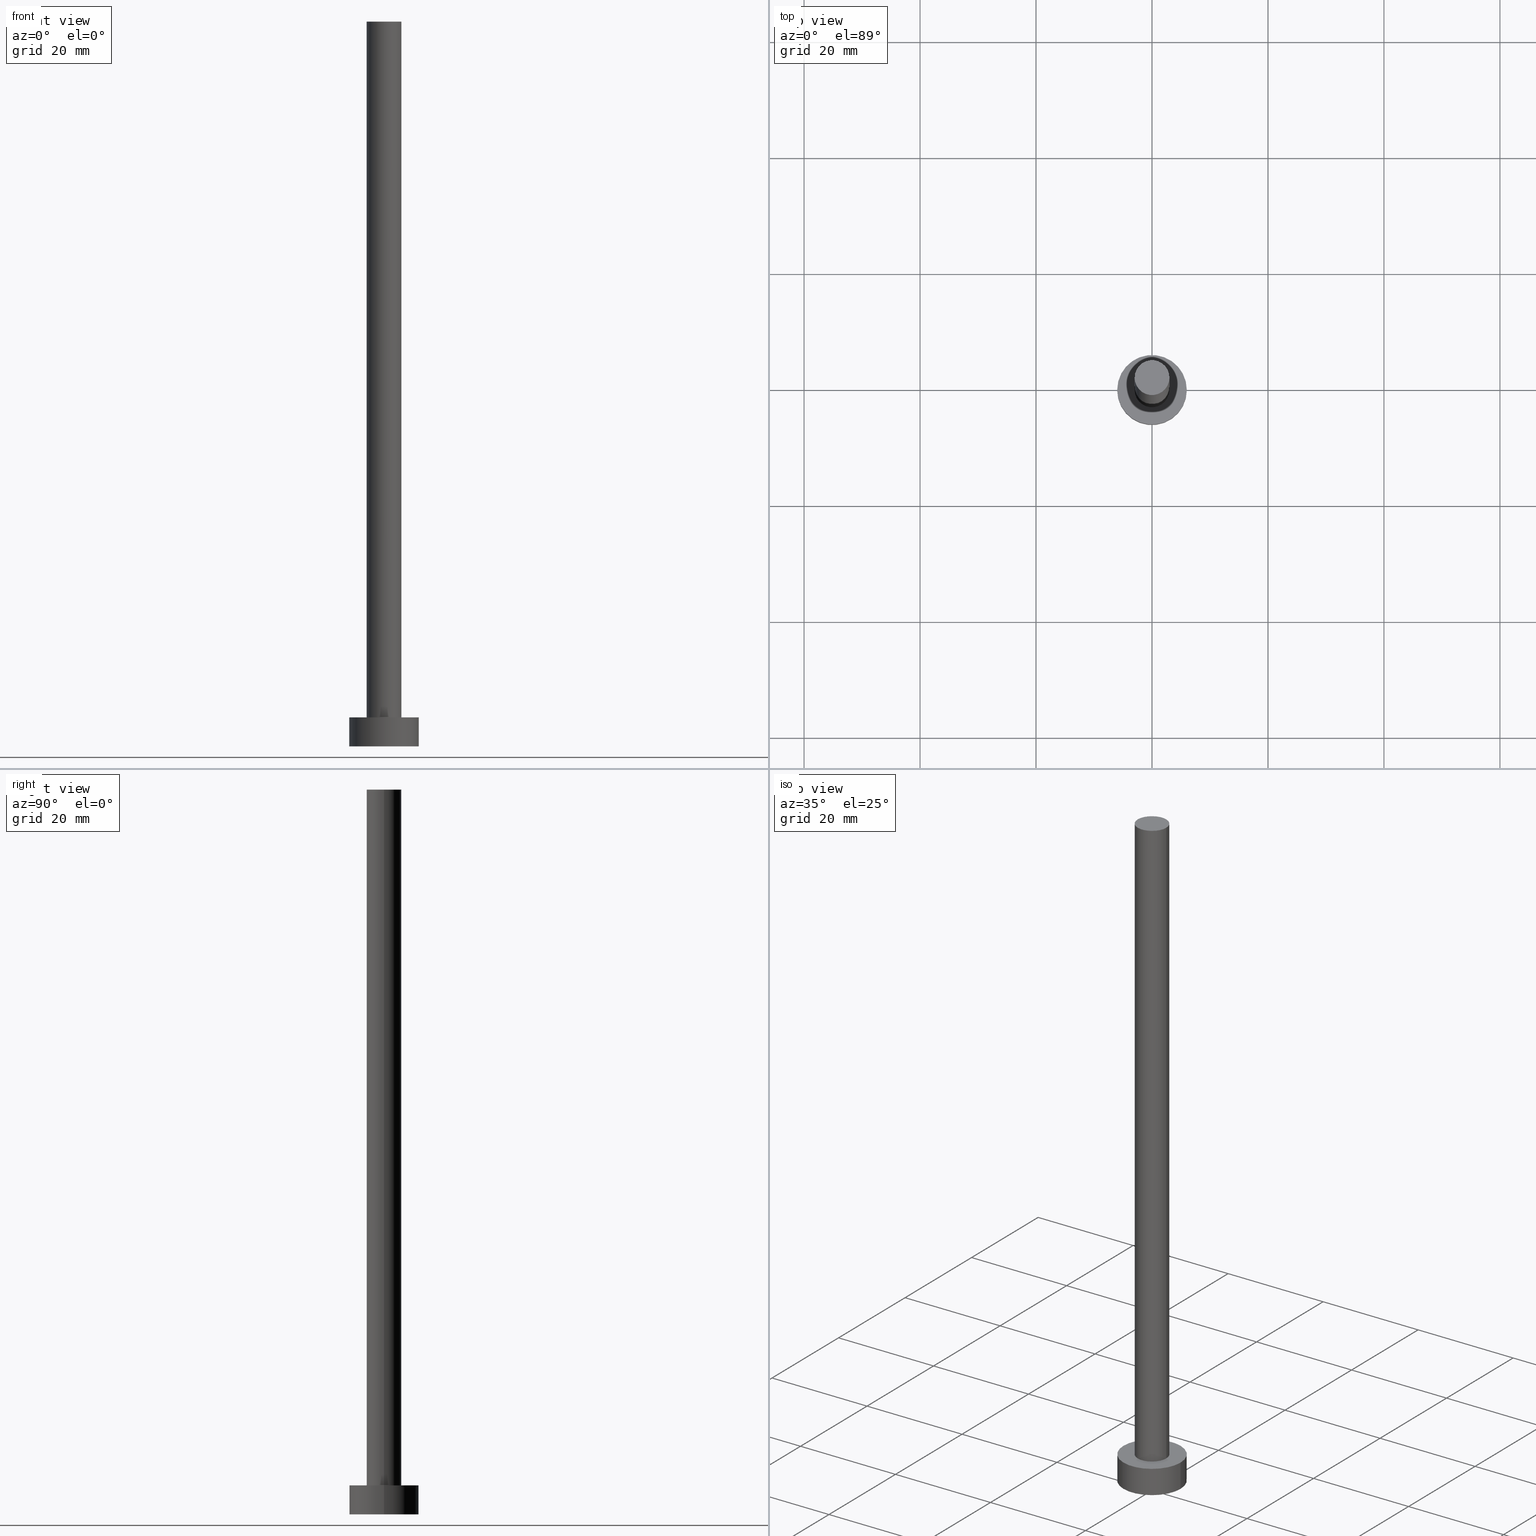
[diagram: canonical four-view strip — front | top / right | iso, engineering-drawing reading convention]
A machine part, canonical four-view strip (front | top / right | iso — engineering-drawing reading convention). The complete STEP part file that produces these views, byte-faithful:
ISO-10303-21;
HEADER;
FILE_DESCRIPTION (( 'STEP AP203' ),
    '1' );
FILE_NAME ('43e4.STEP',
    '2023-02-13T15:45:38',
    ( '' ),
    ( '' ),
    'SwSTEP 2.0',
    'SolidWorks 2019',
    '' );
FILE_SCHEMA (( 'CONFIG_CONTROL_DESIGN' ));
ENDSEC;

DATA;
#1 = CIRCLE ( 'NONE', #123, 6.000000000000000888 ) ;
#2 = ORGANIZATION ( 'NEUR�EN�', 'NEUR�EN�', '' ) ;
#3 = ORIENTED_EDGE ( 'NONE', *, *, #43, .T. ) ;
#4 = LINE ( 'NONE', #236, #196 ) ;
#5 = ORIENTED_EDGE ( 'NONE', *, *, #43, .F. ) ;
#6 = ADVANCED_FACE ( 'NONE', ( #76, #178 ), #73, .T. ) ;
#7 = ORIENTED_EDGE ( 'NONE', *, *, #235, .F. ) ;
#8 = AXIS2_PLACEMENT_3D ( 'NONE', #63, #28, #179 ) ;
#9 = CYLINDRICAL_SURFACE ( 'NONE', #50, 6.000000000000000888 ) ;
#10 = CYLINDRICAL_SURFACE ( 'NONE', #159, 3.000000000000000444 ) ;
#11 = CARTESIAN_POINT ( 'NONE',  ( 0.000000000000000000, 0.000000000000000000, 125.0000000000000000 ) ) ;
#12 = APPROVAL_PERSON_ORGANIZATION ( #69, #242, #209 ) ;
#13 = CC_DESIGN_PERSON_AND_ORGANIZATION_ASSIGNMENT ( #166, #84, ( #40 ) ) ;
#14 = DIRECTION ( 'NONE',  ( -0.000000000000000000, -0.000000000000000000, -1.000000000000000000 ) ) ;
#15 = CIRCLE ( 'NONE', #220, 3.000000000000000444 ) ;
#16 = EDGE_CURVE ( 'NONE', #156, #219, #175, .T. ) ;
#17 = APPROVAL_PERSON_ORGANIZATION ( #21, #132, #36 ) ;
#18 = PERSON_AND_ORGANIZATION ( #216, #2 ) ;
#19 = CALENDAR_DATE ( 2023, 13, 2 ) ;
#20 = PRODUCT_DEFINITION_FORMATION_WITH_SPECIFIED_SOURCE ( 'LIBOVOLN�', '', #40, .NOT_KNOWN. ) ;
#21 = PERSON_AND_ORGANIZATION ( #216, #2 ) ;
#22 = VERTEX_POINT ( 'NONE', #24 ) ;
#23 = DIRECTION ( 'NONE',  ( 0.000000000000000000, 0.000000000000000000, 1.000000000000000000 ) ) ;
#24 = CARTESIAN_POINT ( 'NONE',  ( 6.000000000000000888, 7.347880794884120722E-16, 5.000000000000000000 ) ) ;
#25 = EDGE_CURVE ( 'NONE', #185, #211, #142, .T. ) ;
#26 = DIRECTION ( 'NONE',  ( 1.000000000000000000, 0.000000000000000000, -0.000000000000000000 ) ) ;
#27 = DIRECTION ( 'NONE',  ( 1.000000000000000000, 0.000000000000000000, 0.000000000000000000 ) ) ;
#28 = DIRECTION ( 'NONE',  ( 0.000000000000000000, 0.000000000000000000, 1.000000000000000000 ) ) ;
#29 = EDGE_CURVE ( 'NONE', #22, #151, #204, .T. ) ;
#30 = DIRECTION ( 'NONE',  ( 0.000000000000000000, 0.000000000000000000, 1.000000000000000000 ) ) ;
#31 = DIRECTION ( 'NONE',  ( 1.000000000000000000, 0.000000000000000000, 0.000000000000000000 ) ) ;
#32 = COORDINATED_UNIVERSAL_TIME_OFFSET ( 1, 0, .AHEAD. ) ;
#33 = ORIENTED_EDGE ( 'NONE', *, *, #89, .T. ) ;
#34 = PERSON_AND_ORGANIZATION_ROLE ( 'classification_officer' ) ;
#35 = EDGE_LOOP ( 'NONE', ( #104, #194 ) ) ;
#36 = APPROVAL_ROLE ( '' ) ;
#37 = APPROVAL_DATE_TIME ( #149, #132 ) ;
#38 = DIRECTION ( 'NONE',  ( -0.000000000000000000, -0.000000000000000000, -1.000000000000000000 ) ) ;
#39 = DIRECTION ( 'NONE',  ( 0.000000000000000000, 0.000000000000000000, 1.000000000000000000 ) ) ;
#40 = PRODUCT ( '43e4', '43e4', '', ( #122 ) ) ;
#41 = ORIENTED_EDGE ( 'NONE', *, *, #16, .T. ) ;
#42 = CARTESIAN_POINT ( 'NONE',  ( 0.000000000000000000, 0.000000000000000000, 5.000000000000000000 ) ) ;
#43 = EDGE_CURVE ( 'NONE', #151, #185, #4, .T. ) ;
#44 = CARTESIAN_POINT ( 'NONE',  ( 0.000000000000000000, 0.000000000000000000, 5.000000000000000000 ) ) ;
#45 = CARTESIAN_POINT ( 'NONE',  ( 0.000000000000000000, 0.000000000000000000, 125.0000000000000000 ) ) ;
#46 = CARTESIAN_POINT ( 'NONE',  ( 3.000000000000000444, 3.673940397442060361E-16, 5.000000000000000000 ) ) ;
#47 = DIRECTION ( 'NONE',  ( 1.000000000000000000, 0.000000000000000000, 0.000000000000000000 ) ) ;
#48 = APPLICATION_PROTOCOL_DEFINITION ( 'international standard', 'config_control_design', 1994, #206 ) ;
#49 = CC_DESIGN_APPROVAL ( #242, ( #20 ) ) ;
#50 = AXIS2_PLACEMENT_3D ( 'NONE', #77, #38, #141 ) ;
#51 = EDGE_LOOP ( 'NONE', ( #191, #88, #168, #5 ) ) ;
#52 = DIRECTION ( 'NONE',  ( 0.000000000000000000, 0.000000000000000000, 1.000000000000000000 ) ) ;
#53 = CC_DESIGN_PERSON_AND_ORGANIZATION_ASSIGNMENT ( #18, #127, ( #20 ) ) ;
#54 = AXIS2_PLACEMENT_3D ( 'NONE', #44, #39, #26 ) ;
#55 = VERTEX_POINT ( 'NONE', #74 ) ;
#56 = DIRECTION ( 'NONE',  ( -0.000000000000000000, -0.000000000000000000, -1.000000000000000000 ) ) ;
#57 = EDGE_CURVE ( 'NONE', #156, #212, #15, .T. ) ;
#58 = FACE_OUTER_BOUND ( 'NONE', #241, .T. ) ;
#59 = DIRECTION ( 'NONE',  ( 0.000000000000000000, 0.000000000000000000, 1.000000000000000000 ) ) ;
#60 = FACE_OUTER_BOUND ( 'NONE', #130, .T. ) ;
#61 = CARTESIAN_POINT ( 'NONE',  ( 0.000000000000000000, 0.000000000000000000, 0.000000000000000000 ) ) ;
#62 = DIRECTION ( 'NONE',  ( 1.000000000000000000, 0.000000000000000000, -0.000000000000000000 ) ) ;
#63 = CARTESIAN_POINT ( 'NONE',  ( 0.000000000000000000, 0.000000000000000000, 5.000000000000000000 ) ) ;
#64 = SHAPE_DEFINITION_REPRESENTATION ( #248, #169 ) ;
#65 = APPROVAL_ROLE ( '' ) ;
#66 = ADVANCED_FACE ( 'NONE', ( #58 ), #240, .T. ) ;
#67 = LOCAL_TIME ( 16, 45, 38.00000000000000000, #229 ) ;
#68 = UNCERTAINTY_MEASURE_WITH_UNIT (LENGTH_MEASURE( 1.000000000000000082E-05 ), #228, 'distance_accuracy_value', 'NONE');
#69 = PERSON_AND_ORGANIZATION ( #216, #2 ) ;
#70 = COORDINATED_UNIVERSAL_TIME_OFFSET ( 1, 0, .AHEAD. ) ;
#71 = AXIS2_PLACEMENT_3D ( 'NONE', #42, #59, #129 ) ;
#72 = ORIENTED_EDGE ( 'NONE', *, *, #89, .F. ) ;
#73 = PLANE ( 'NONE',  #54 ) ;
#74 = CARTESIAN_POINT ( 'NONE',  ( -3.000000000000000444, 0.000000000000000000, 5.000000000000000000 ) ) ;
#75 = CIRCLE ( 'NONE', #107, 3.000000000000000444 ) ;
#76 = FACE_BOUND ( 'NONE', #133, .T. ) ;
#77 = CARTESIAN_POINT ( 'NONE',  ( 0.000000000000000000, 0.000000000000000000, 5.000000000000000000 ) ) ;
#78 = DIRECTION ( 'NONE',  ( 1.000000000000000000, 0.000000000000000000, -0.000000000000000000 ) ) ;
#79 = MANIFOLD_SOLID_BREP ( 'P�idat vysunut�m3', #126 ) ;
#80 = DIRECTION ( 'NONE',  ( 0.000000000000000000, 0.000000000000000000, 1.000000000000000000 ) ) ;
#81 = CARTESIAN_POINT ( 'NONE',  ( -6.000000000000000888, 0.000000000000000000, 0.000000000000000000 ) ) ;
#82 = CALENDAR_DATE ( 2023, 13, 2 ) ;
#83 = ORIENTED_EDGE ( 'NONE', *, *, #16, .F. ) ;
#84 = PERSON_AND_ORGANIZATION_ROLE ( 'design_owner' ) ;
#85 = CALENDAR_DATE ( 2023, 13, 2 ) ;
#86 = PERSON_AND_ORGANIZATION_ROLE ( 'design_supplier' ) ;
#87 = FACE_OUTER_BOUND ( 'NONE', #51, .T. ) ;
#88 = ORIENTED_EDGE ( 'NONE', *, *, #172, .T. ) ;
#89 = EDGE_CURVE ( 'NONE', #151, #22, #1, .T. ) ;
#90 = ORIENTED_EDGE ( 'NONE', *, *, #57, .T. ) ;
#91 = ORIENTED_EDGE ( 'NONE', *, *, #235, .T. ) ;
#92 = PRODUCT_RELATED_PRODUCT_CATEGORY ( 'detail', '', ( #40 ) ) ;
#93 = ORIENTED_EDGE ( 'NONE', *, *, #233, .T. ) ;
#94 = CC_DESIGN_DATE_AND_TIME_ASSIGNMENT ( #232, #103, ( #231 ) ) ;
#95 = PLANE ( 'NONE',  #192 ) ;
#96 = FACE_OUTER_BOUND ( 'NONE', #177, .T. ) ;
#97 = CARTESIAN_POINT ( 'NONE',  ( 0.000000000000000000, 0.000000000000000000, 5.000000000000000000 ) ) ;
#98 = AXIS2_PLACEMENT_3D ( 'NONE', #193, #23, #215 ) ;
#99 = APPROVAL_STATUS ( 'not_yet_approved' ) ;
#100 = ADVANCED_FACE ( 'NONE', ( #87 ), #9, .T. ) ;
#101 = ORIENTED_EDGE ( 'NONE', *, *, #233, .F. ) ;
#102 = PERSON_AND_ORGANIZATION_ROLE ( 'creator' ) ;
#103 = DATE_TIME_ROLE ( 'classification_date' ) ;
#104 = ORIENTED_EDGE ( 'NONE', *, *, #25, .F. ) ;
#105 = DATE_AND_TIME ( #19, #116 ) ;
#106 = AXIS2_PLACEMENT_3D ( 'NONE', #118, #180, #31 ) ;
#107 = AXIS2_PLACEMENT_3D ( 'NONE', #139, #80, #162 ) ;
#108 = APPLICATION_PROTOCOL_DEFINITION ( 'international standard', 'config_control_design', 1994, #224 ) ;
#109 = ORIENTED_EDGE ( 'NONE', *, *, #110, .F. ) ;
#110 = EDGE_CURVE ( 'NONE', #212, #55, #245, .T. ) ;
#111 = CARTESIAN_POINT ( 'NONE',  ( 3.000000000000000444, 3.673940397442060361E-16, 125.0000000000000000 ) ) ;
#112 = APPROVAL_PERSON_ORGANIZATION ( #187, #138, #65 ) ;
#113 = EDGE_LOOP ( 'NONE', ( #208, #90 ) ) ;
#114 = EDGE_LOOP ( 'NONE', ( #33, #124 ) ) ;
#115 = CARTESIAN_POINT ( 'NONE',  ( 0.000000000000000000, 0.000000000000000000, 5.000000000000000000 ) ) ;
#116 = LOCAL_TIME ( 16, 45, 38.00000000000000000, #70 ) ;
#117 = FACE_OUTER_BOUND ( 'NONE', #35, .T. ) ;
#118 = CARTESIAN_POINT ( 'NONE',  ( 0.000000000000000000, 0.000000000000000000, 5.000000000000000000 ) ) ;
#119 = DIRECTION ( 'NONE',  ( -0.000000000000000000, -0.000000000000000000, -1.000000000000000000 ) ) ;
#120 = DIRECTION ( 'NONE',  ( -0.000000000000000000, -0.000000000000000000, -1.000000000000000000 ) ) ;
#121 =( NAMED_UNIT ( * ) SI_UNIT ( $, .STERADIAN. ) SOLID_ANGLE_UNIT ( ) );
#122 = MECHANICAL_CONTEXT ( 'NONE', #206, 'mechanical' ) ;
#123 = AXIS2_PLACEMENT_3D ( 'NONE', #115, #197, #27 ) ;
#124 = ORIENTED_EDGE ( 'NONE', *, *, #29, .T. ) ;
#125 = DATE_TIME_ROLE ( 'creation_date' ) ;
#126 = CLOSED_SHELL ( 'NONE', ( #66, #100, #181, #6, #176, #163, #150 ) ) ;
#127 = PERSON_AND_ORGANIZATION_ROLE ( 'creator' ) ;
#128 = CC_DESIGN_APPROVAL ( #132, ( #214 ) ) ;
#129 = DIRECTION ( 'NONE',  ( 1.000000000000000000, 0.000000000000000000, 0.000000000000000000 ) ) ;
#130 = EDGE_LOOP ( 'NONE', ( #83, #218, #173, #91 ) ) ;
#131 = AXIS2_PLACEMENT_3D ( 'NONE', #135, #195, #136 ) ;
#132 = APPROVAL ( #99, 'NEUR�EN�' ) ;
#133 = EDGE_LOOP ( 'NONE', ( #7, #101 ) ) ;
#134 = CC_DESIGN_SECURITY_CLASSIFICATION ( #231, ( #20 ) ) ;
#135 = CARTESIAN_POINT ( 'NONE',  ( 0.000000000000000000, 0.000000000000000000, 125.0000000000000000 ) ) ;
#136 = DIRECTION ( 'NONE',  ( -1.000000000000000000, 0.000000000000000000, 0.000000000000000000 ) ) ;
#137 = CARTESIAN_POINT ( 'NONE',  ( 0.000000000000000000, 0.000000000000000000, 0.000000000000000000 ) ) ;
#138 = APPROVAL ( #250, 'NEUR�EN�' ) ;
#139 = CARTESIAN_POINT ( 'NONE',  ( 0.000000000000000000, 0.000000000000000000, 125.0000000000000000 ) ) ;
#140 = CARTESIAN_POINT ( 'NONE',  ( 3.000000000000000444, 3.673940397442060361E-16, 125.0000000000000000 ) ) ;
#141 = DIRECTION ( 'NONE',  ( -1.000000000000000000, 0.000000000000000000, 0.000000000000000000 ) ) ;
#142 = CIRCLE ( 'NONE', #98, 6.000000000000000888 ) ;
#143 = DIRECTION ( 'NONE',  ( 0.000000000000000000, 0.000000000000000000, 1.000000000000000000 ) ) ;
#144 = DATE_AND_TIME ( #253, #183 ) ;
#145 = CC_DESIGN_PERSON_AND_ORGANIZATION_ASSIGNMENT ( #205, #34, ( #231 ) ) ;
#146 = APPROVAL_STATUS ( 'not_yet_approved' ) ;
#147 = CC_DESIGN_APPROVAL ( #138, ( #231 ) ) ;
#148 = ORIENTED_EDGE ( 'NONE', *, *, #25, .T. ) ;
#149 = DATE_AND_TIME ( #85, #252 ) ;
#150 = ADVANCED_FACE ( 'NONE', ( #200 ), #221, .T. ) ;
#151 = VERTEX_POINT ( 'NONE', #164 ) ;
#152 = DIRECTION ( 'NONE',  ( -0.000000000000000000, -0.000000000000000000, -1.000000000000000000 ) ) ;
#153 = CARTESIAN_POINT ( 'NONE',  ( 0.000000000000000000, 0.000000000000000000, 125.0000000000000000 ) ) ;
#154 = CIRCLE ( 'NONE', #8, 3.000000000000000444 ) ;
#155 = DIRECTION ( 'NONE',  ( 1.000000000000000000, 0.000000000000000000, 0.000000000000000000 ) ) ;
#156 = VERTEX_POINT ( 'NONE', #140 ) ;
#157 = VECTOR ( 'NONE', #120, 1000.000000000000000 ) ;
#158 = DIRECTION ( 'NONE',  ( -1.000000000000000000, 0.000000000000000000, 0.000000000000000000 ) ) ;
#159 = AXIS2_PLACEMENT_3D ( 'NONE', #11, #182, #158 ) ;
#160 = CARTESIAN_POINT ( 'NONE',  ( 0.000000000000000000, 0.000000000000000000, 0.000000000000000000 ) ) ;
#161 = CYLINDRICAL_SURFACE ( 'NONE', #227, 6.000000000000000888 ) ;
#162 = DIRECTION ( 'NONE',  ( 1.000000000000000000, 0.000000000000000000, 0.000000000000000000 ) ) ;
#163 = ADVANCED_FACE ( 'NONE', ( #60 ), #10, .T. ) ;
#164 = CARTESIAN_POINT ( 'NONE',  ( -6.000000000000000888, 0.000000000000000000, 5.000000000000000000 ) ) ;
#165 = CC_DESIGN_DATE_AND_TIME_ASSIGNMENT ( #144, #125, ( #214 ) ) ;
#166 = PERSON_AND_ORGANIZATION ( #216, #2 ) ;
#167 = COORDINATED_UNIVERSAL_TIME_OFFSET ( 1, 0, .AHEAD. ) ;
#168 = ORIENTED_EDGE ( 'NONE', *, *, #255, .T. ) ;
#169 = ADVANCED_BREP_SHAPE_REPRESENTATION ( '43e4', ( #79, #217 ), #171 ) ;
#170 = APPROVAL_DATE_TIME ( #105, #138 ) ;
#171 =( GEOMETRIC_REPRESENTATION_CONTEXT ( 3 ) GLOBAL_UNCERTAINTY_ASSIGNED_CONTEXT ( ( #68 ) ) GLOBAL_UNIT_ASSIGNED_CONTEXT ( ( #228, #246, #121 ) ) REPRESENTATION_CONTEXT ( 'NONE', 'WORKASPACE' ) );
#172 = EDGE_CURVE ( 'NONE', #22, #211, #243, .T. ) ;
#173 = ORIENTED_EDGE ( 'NONE', *, *, #110, .T. ) ;
#174 = ORIENTED_EDGE ( 'NONE', *, *, #57, .F. ) ;
#175 = LINE ( 'NONE', #111, #213 ) ;
#176 = ADVANCED_FACE ( 'NONE', ( #117 ), #95, .F. ) ;
#177 = EDGE_LOOP ( 'NONE', ( #234, #72, #3, #148 ) ) ;
#178 = FACE_OUTER_BOUND ( 'NONE', #114, .T. ) ;
#179 = DIRECTION ( 'NONE',  ( 1.000000000000000000, 0.000000000000000000, 0.000000000000000000 ) ) ;
#180 = DIRECTION ( 'NONE',  ( 0.000000000000000000, 0.000000000000000000, 1.000000000000000000 ) ) ;
#181 = ADVANCED_FACE ( 'NONE', ( #96 ), #161, .T. ) ;
#182 = DIRECTION ( 'NONE',  ( -0.000000000000000000, -0.000000000000000000, -1.000000000000000000 ) ) ;
#183 = LOCAL_TIME ( 16, 45, 38.00000000000000000, #167 ) ;
#184 = PERSON_AND_ORGANIZATION ( #216, #2 ) ;
#185 = VERTEX_POINT ( 'NONE', #81 ) ;
#186 = EDGE_CURVE ( 'NONE', #212, #156, #75, .T. ) ;
#187 = PERSON_AND_ORGANIZATION ( #216, #2 ) ;
#188 = LOCAL_TIME ( 16, 45, 38.00000000000000000, #203 ) ;
#189 = DATE_AND_TIME ( #207, #67 ) ;
#190 = CC_DESIGN_PERSON_AND_ORGANIZATION_ASSIGNMENT ( #254, #86, ( #20 ) ) ;
#191 = ORIENTED_EDGE ( 'NONE', *, *, #29, .F. ) ;
#192 = AXIS2_PLACEMENT_3D ( 'NONE', #61, #201, #62 ) ;
#193 = CARTESIAN_POINT ( 'NONE',  ( 0.000000000000000000, 0.000000000000000000, 0.000000000000000000 ) ) ;
#194 = ORIENTED_EDGE ( 'NONE', *, *, #255, .F. ) ;
#195 = DIRECTION ( 'NONE',  ( -0.000000000000000000, -0.000000000000000000, -1.000000000000000000 ) ) ;
#196 = VECTOR ( 'NONE', #56, 1000.000000000000000 ) ;
#197 = DIRECTION ( 'NONE',  ( 0.000000000000000000, 0.000000000000000000, 1.000000000000000000 ) ) ;
#198 = CARTESIAN_POINT ( 'NONE',  ( -3.000000000000000444, 0.000000000000000000, 125.0000000000000000 ) ) ;
#199 = CARTESIAN_POINT ( 'NONE',  ( 6.000000000000000888, 7.347880794884120722E-16, 0.000000000000000000 ) ) ;
#200 = FACE_OUTER_BOUND ( 'NONE', #113, .T. ) ;
#201 = DIRECTION ( 'NONE',  ( 0.000000000000000000, 0.000000000000000000, 1.000000000000000000 ) ) ;
#202 = DESIGN_CONTEXT ( 'detailed design', #224, 'design' ) ;
#203 = COORDINATED_UNIVERSAL_TIME_OFFSET ( 1, 0, .AHEAD. ) ;
#204 = CIRCLE ( 'NONE', #71, 6.000000000000000888 ) ;
#205 = PERSON_AND_ORGANIZATION ( #216, #2 ) ;
#206 = APPLICATION_CONTEXT ( 'configuration controlled 3d designs of mechanical parts and assemblies' ) ;
#207 = CALENDAR_DATE ( 2023, 13, 2 ) ;
#208 = ORIENTED_EDGE ( 'NONE', *, *, #186, .T. ) ;
#209 = APPROVAL_ROLE ( '' ) ;
#210 = DIRECTION ( 'NONE',  ( 1.000000000000000000, 0.000000000000000000, 0.000000000000000000 ) ) ;
#211 = VERTEX_POINT ( 'NONE', #199 ) ;
#212 = VERTEX_POINT ( 'NONE', #223 ) ;
#213 = VECTOR ( 'NONE', #152, 1000.000000000000000 ) ;
#214 = PRODUCT_DEFINITION ( 'NEZN�M�', '', #20, #202 ) ;
#215 = DIRECTION ( 'NONE',  ( 1.000000000000000000, 0.000000000000000000, 0.000000000000000000 ) ) ;
#216 = PERSON ( 'NEUR�EN�', 'NEUR�EN�', 'NEUR�EN�', ('NEUR�EN�'), ('NEUR�EN�'), ('NEUR�EN�') ) ;
#217 = AXIS2_PLACEMENT_3D ( 'NONE', #137, #52, #210 ) ;
#218 = ORIENTED_EDGE ( 'NONE', *, *, #186, .F. ) ;
#219 = VERTEX_POINT ( 'NONE', #46 ) ;
#220 = AXIS2_PLACEMENT_3D ( 'NONE', #153, #239, #155 ) ;
#221 = PLANE ( 'NONE',  #230 ) ;
#222 = CIRCLE ( 'NONE', #244, 6.000000000000000888 ) ;
#223 = CARTESIAN_POINT ( 'NONE',  ( -3.000000000000000444, 0.000000000000000000, 125.0000000000000000 ) ) ;
#224 = APPLICATION_CONTEXT ( 'configuration controlled 3d designs of mechanical parts and assemblies' ) ;
#225 = DIRECTION ( 'NONE',  ( -1.000000000000000000, 0.000000000000000000, 0.000000000000000000 ) ) ;
#226 = CIRCLE ( 'NONE', #106, 3.000000000000000444 ) ;
#227 = AXIS2_PLACEMENT_3D ( 'NONE', #97, #14, #225 ) ;
#228 =( LENGTH_UNIT ( ) NAMED_UNIT ( * ) SI_UNIT ( .MILLI., .METRE. ) );
#229 = COORDINATED_UNIVERSAL_TIME_OFFSET ( 1, 0, .AHEAD. ) ;
#230 = AXIS2_PLACEMENT_3D ( 'NONE', #45, #30, #78 ) ;
#231 = SECURITY_CLASSIFICATION ( '', '', #249 ) ;
#232 = DATE_AND_TIME ( #82, #188 ) ;
#233 = EDGE_CURVE ( 'NONE', #219, #55, #226, .T. ) ;
#234 = ORIENTED_EDGE ( 'NONE', *, *, #172, .F. ) ;
#235 = EDGE_CURVE ( 'NONE', #55, #219, #154, .T. ) ;
#236 = CARTESIAN_POINT ( 'NONE',  ( -6.000000000000000888, 0.000000000000000000, 5.000000000000000000 ) ) ;
#237 = VECTOR ( 'NONE', #119, 1000.000000000000000 ) ;
#238 = CC_DESIGN_PERSON_AND_ORGANIZATION_ASSIGNMENT ( #184, #102, ( #214 ) ) ;
#239 = DIRECTION ( 'NONE',  ( 0.000000000000000000, 0.000000000000000000, 1.000000000000000000 ) ) ;
#240 = CYLINDRICAL_SURFACE ( 'NONE', #131, 3.000000000000000444 ) ;
#241 = EDGE_LOOP ( 'NONE', ( #174, #41, #93, #109 ) ) ;
#242 = APPROVAL ( #146, 'NEUR�EN�' ) ;
#243 = LINE ( 'NONE', #247, #237 ) ;
#244 = AXIS2_PLACEMENT_3D ( 'NONE', #160, #143, #47 ) ;
#245 = LINE ( 'NONE', #198, #157 ) ;
#246 =( NAMED_UNIT ( * ) PLANE_ANGLE_UNIT ( ) SI_UNIT ( $, .RADIAN. ) );
#247 = CARTESIAN_POINT ( 'NONE',  ( 6.000000000000000888, 7.347880794884120722E-16, 5.000000000000000000 ) ) ;
#248 = PRODUCT_DEFINITION_SHAPE ( 'NONE', 'NONE',  #214 ) ;
#249 = SECURITY_CLASSIFICATION_LEVEL ( 'unclassified' ) ;
#250 = APPROVAL_STATUS ( 'not_yet_approved' ) ;
#251 = APPROVAL_DATE_TIME ( #189, #242 ) ;
#252 = LOCAL_TIME ( 16, 45, 38.00000000000000000, #32 ) ;
#253 = CALENDAR_DATE ( 2023, 13, 2 ) ;
#254 = PERSON_AND_ORGANIZATION ( #216, #2 ) ;
#255 = EDGE_CURVE ( 'NONE', #211, #185, #222, .T. ) ;
ENDSEC;
END-ISO-10303-21;
